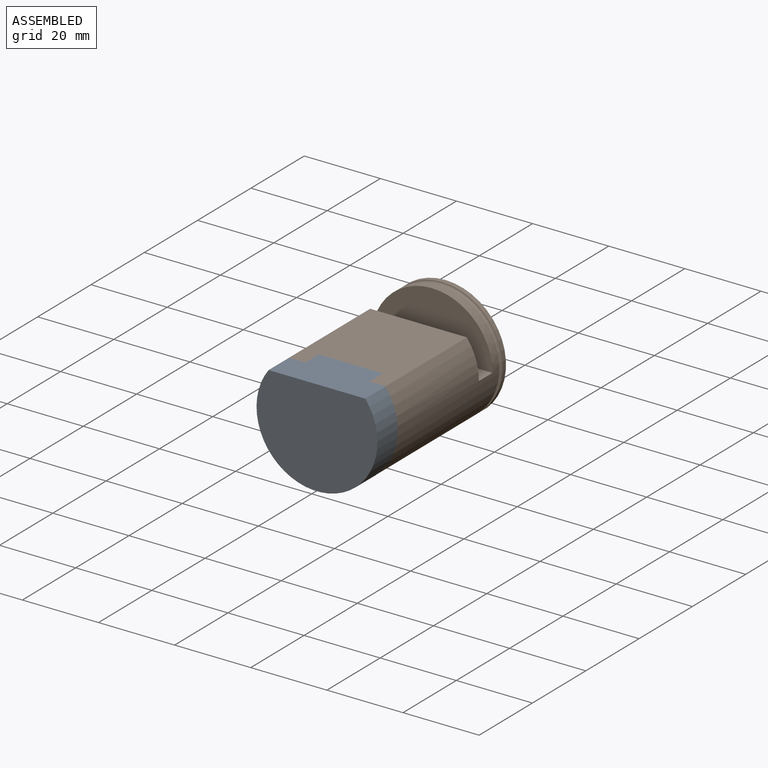
[diagram: assembled view]
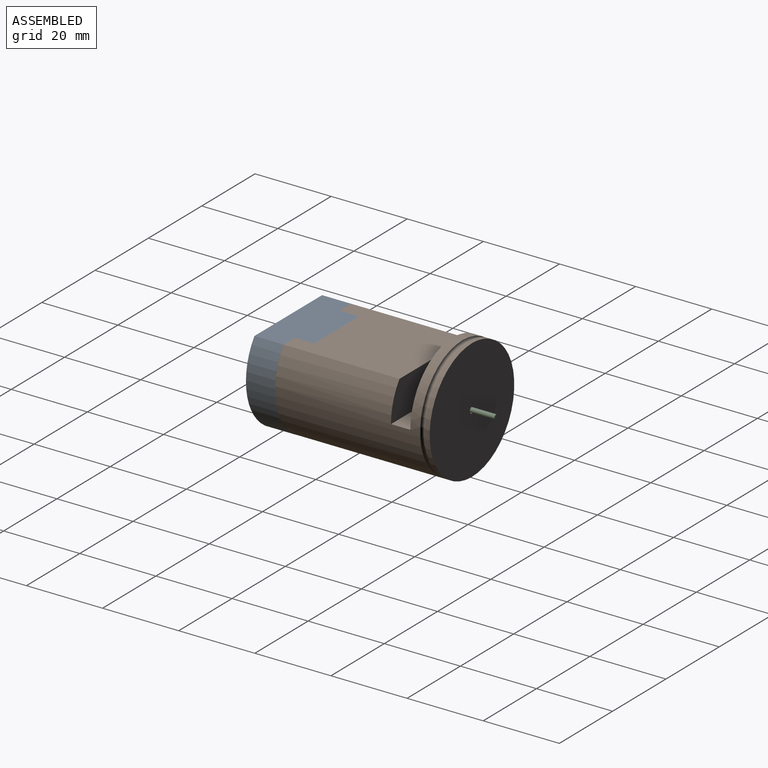
[diagram: assembled view, second angle]
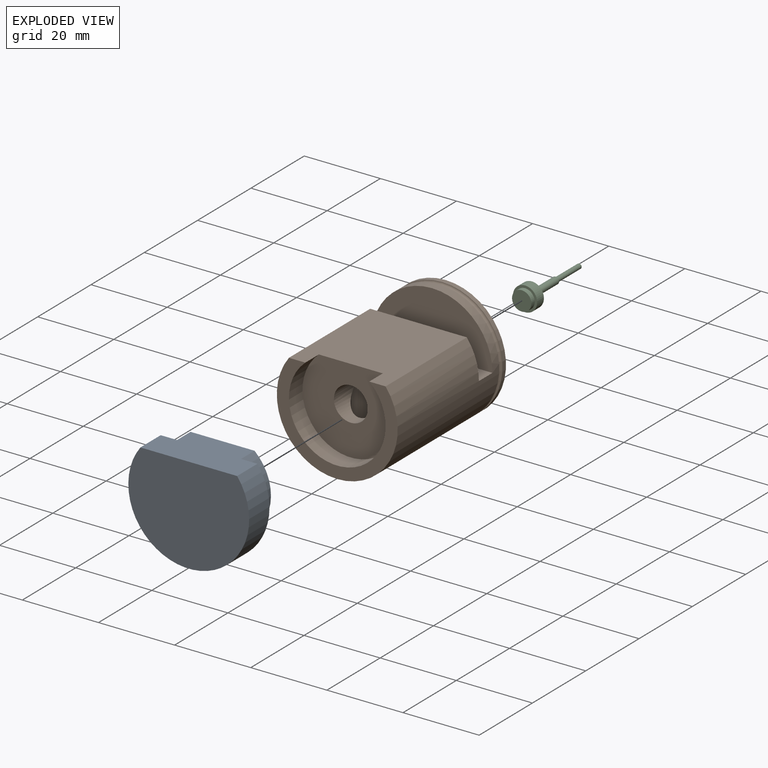
[diagram: exploded view]
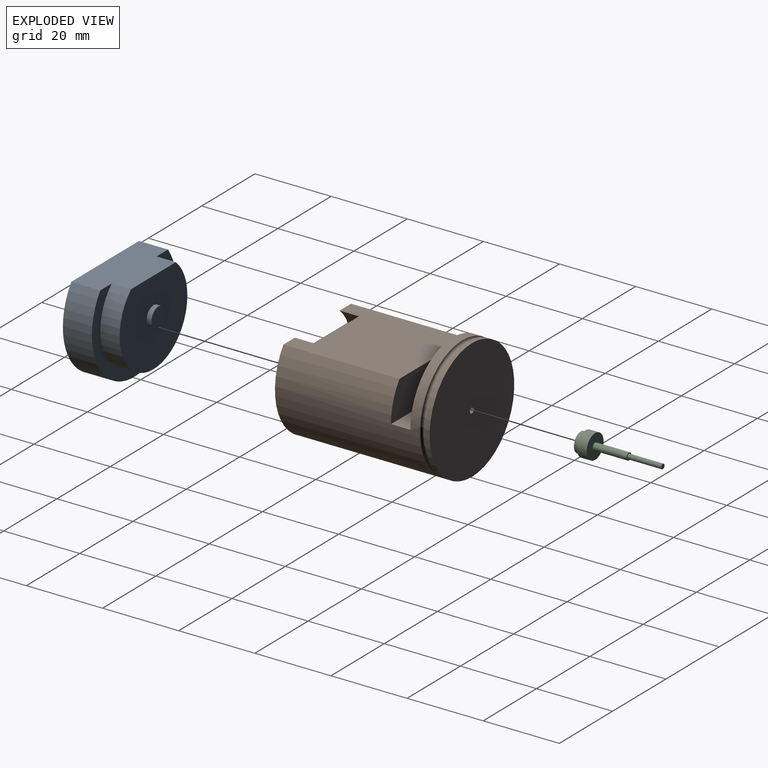
[diagram: exploded view, second angle]
ASSEMBLY  parts=3 mates=2
PART A: 8 faces, bbox 31.8x14x25.4 mm
  f0: plane 25.4x12.7mm, normal (0,0,1), area 278.9mm2, adj f1,f2,f3,f6,f7
  f1: cylinder r=15.88mm len=31.75mm, axis (0,1,0), area 535.7mm2, adj f0,f2,f7
  f2: plane 31.75x25.4mm, normal (0,-1,0), area 679mm2, adj f0,f1
  f3: plane 25.4x22.23mm, normal (0,1,0), area 449.9mm2, adj f0,f4,f6
  f4: cylinder r=2.54mm len=5.08mm, axis (0,-1,0), area 20.3mm2, adj f3,f5
  f5: plane 5.08x5.08mm, normal (0,1,0), area 20.3mm2, adj f4
  f6: cylinder r=12.7mm len=25.4mm, axis (0,1,0), area 312.1mm2, adj f0,f3,f7
  f7: plane 31.75x25.4mm, normal (0,1,0), area 208.9mm2, adj f0,f1,f6
PART B: 20 faces, bbox 35.3x40.6x35.3 mm
  f0: cylinder r=12.7mm len=25.4mm, axis (0,1,0), area 312.1mm2, adj f2,f5,f7
  f1: cylinder r=15.88mm len=31.75mm, axis (0,1,0), area 126.7mm2, adj f3,f19
  f2: plane 31.75x25.4mm, normal (0,-1,0), area 208.9mm2, adj f0,f7,f18
  f3: plane 31.75x31.75mm, normal (0,1,0), area 789.8mm2, adj f1,f8
  f4: plane 31.75x22.23mm, normal (0,-1,0), area 455.5mm2, adj f10,f11,f12,f13,f18
  f5: plane 25.4x22.23mm, normal (0,-1,0), area 408.1mm2, adj f0,f7,f14
  f6: cylinder r=4.45mm len=15.88mm, axis (0,0,1), area 355.5mm2, adj f14,f18
  f7: plane 30.48x25.4mm, normal (0,0,1), area 688.8mm2, adj f0,f2,f5,f15,f18
  f8: cylinder r=0.79mm len=2.54mm, axis (0,1,0), area 12.7mm2, adj f3,f9
  f9: plane 2.16x2.16mm, normal (0,-1,0), area 1.7mm2, adj f8,f10
  f10: cylinder r=1.08mm len=2.54mm, axis (0,1,0), area 17.2mm2, adj f4,f9
  f11: plane 9.53x5.08mm, normal (0,0,1), area 48.4mm2, adj f4,f13,f15,f18
  f12: plane 9.53x5.08mm, normal (0,0,1), area 48.4mm2, adj f4,f13,f15,f18
  f13: cylinder r=6.35mm len=12.7mm, axis (0,1,0), area 101.3mm2, adj f4,f11,f12,f15
  f14: cylinder r=4.45mm len=24.13mm, axis (0,1,0), area 594.9mm2, adj f5,f6,f17
  f15: plane 31.75x15.88mm, normal (0,1,0), area 326.2mm2, adj f7,f11,f12,f13,f16,f18
  f16: cylinder r=2.54mm len=5.08mm, axis (0,1,0), area 20.3mm2, adj f15,f17
  f17: plane 8.89x8.89mm, normal (0,-1,0), area 41.8mm2, adj f14,f16
  f18: cylinder r=15.88mm len=38.1mm, axis (0,1,0), area 2586.8mm2, adj f2,f4,f6,f7,f11,f12,f15,f19
  f19: torus R=15.88mm, axis (0,1,0), area 193.9mm2, adj f1,f18
PART C: 9 faces, bbox 6.4x21.6x6.4 mm
  f0: cylinder r=3.17mm len=6.35mm, axis (0,1,0), area 50.7mm2, adj f1,f2
  f1: plane 6.35x6.35mm, normal (0,-1,0), area 29mm2, adj f0,f3
  f2: plane 6.35x6.35mm, normal (0,1,0), area 11.4mm2, adj f0,f7
  f3: cylinder r=0.92mm len=8.89mm, axis (0,1,0), area 51.4mm2, adj f1,f4
  f4: plane 1.84x1.84mm, normal (0,-1,0), area 1.4mm2, adj f3,f6
  f5: plane 1.27x1.27mm, normal (0,-1,0), area 1.3mm2, adj f6
  f6: cylinder r=0.64mm len=8.89mm, axis (0,1,0), area 35.5mm2, adj f4,f5
  f7: cylinder r=2.54mm len=5.08mm, axis (0,-1,0), area 20.3mm2, adj f2,f8
  f8: plane 5.08x5.08mm, normal (0,1,0), area 20.3mm2, adj f7
PLACE A t=(1.5,-11.91,-1.06)mm
PLACE B t=(1.5,-11.91,-1.06)mm
PLACE C rot(axis=(1,0,0),180deg) t=(1.5,-25.88,-1.06)mm
MATE slider C.f3 <-> B.f14  axis (0,1,0) through (1.5,-23.34,-1.06)mm
MATE fastened A.f4 <-> B.f14  axis (0,1,0) through (1.5,-47.47,-1.06)mm
